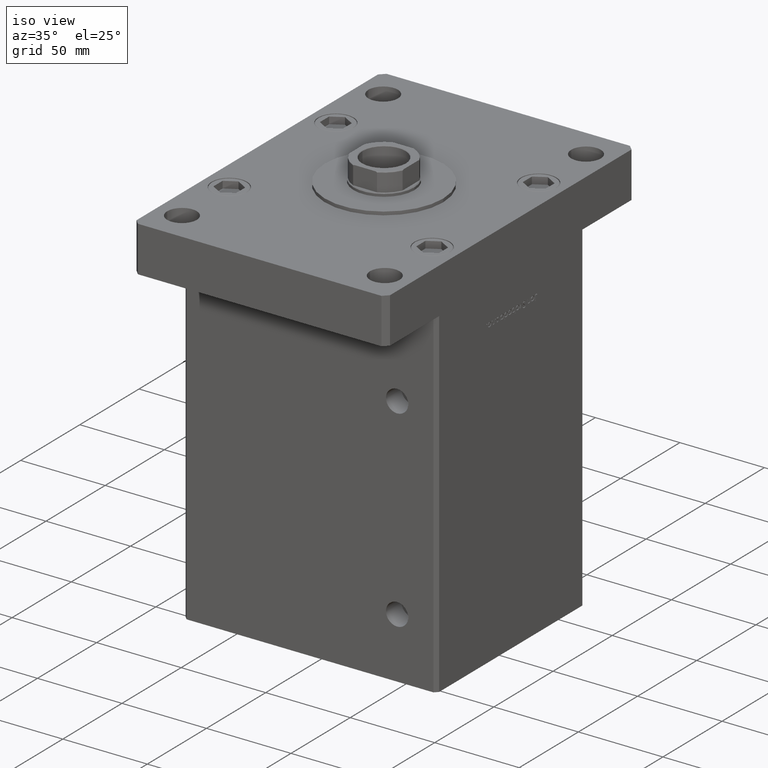
[diagram: clean part render]
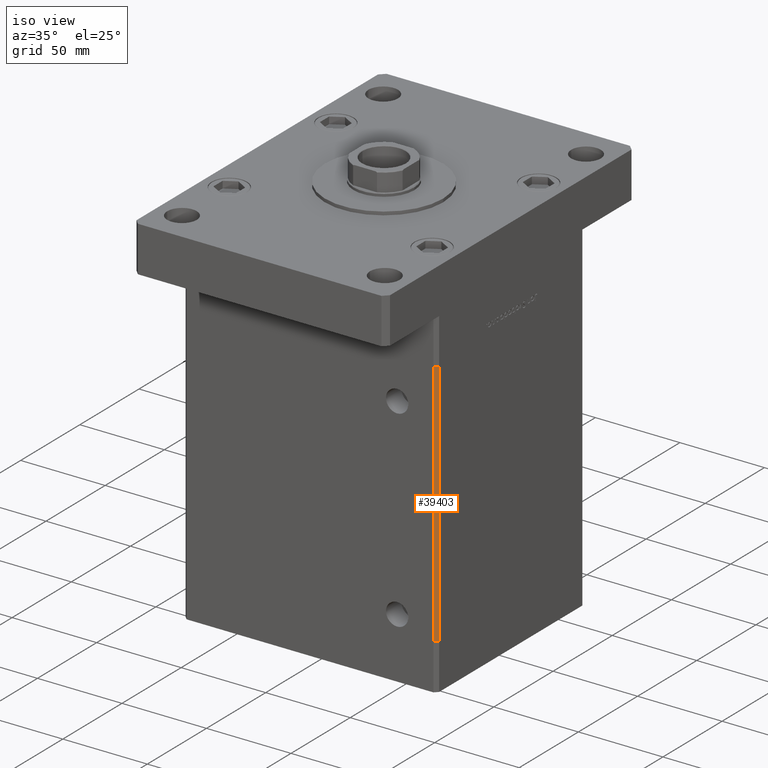
[diagram: same view with one face highlighted and labeled with its STEP entity id]
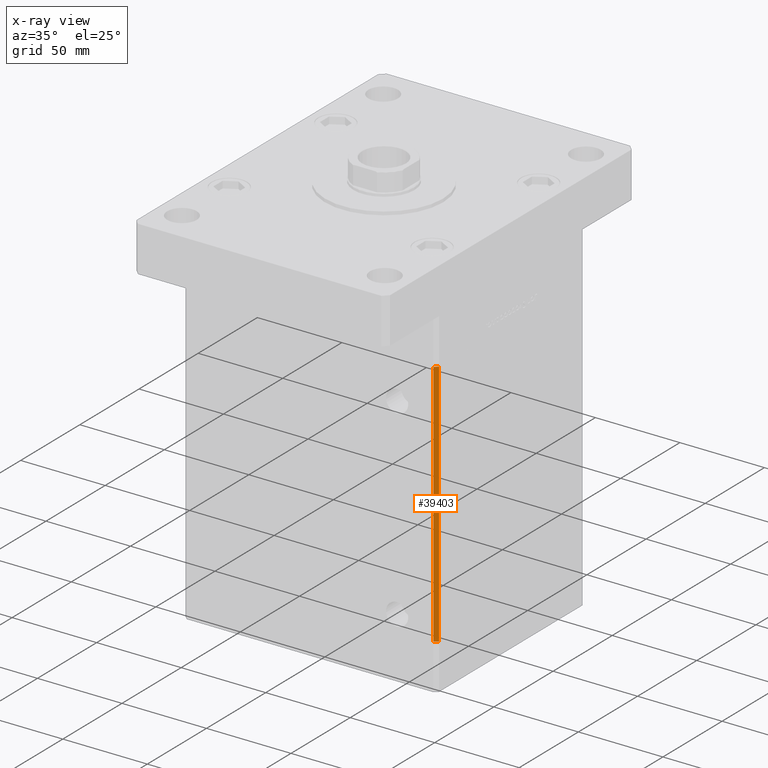
[diagram: x-ray of the same camera — body ghosted, the highlighted face saturated]
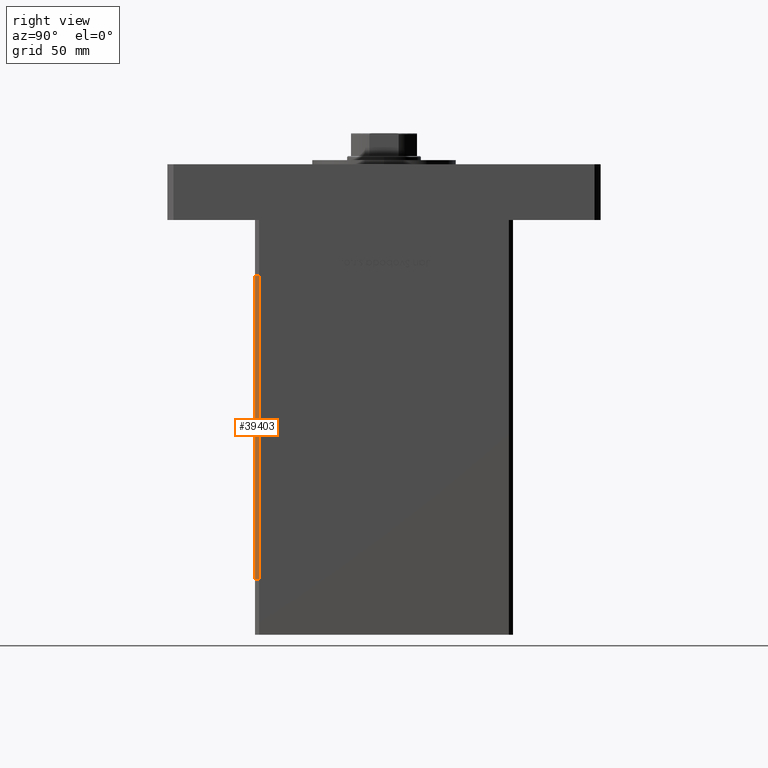
[diagram: same view with one face highlighted and labeled with its STEP entity id]
A machine part, iso view. The second image highlights one B-rep face of the part: STEP entity #39403.
The next image is the same camera in x-ray: the body ghosted, the highlighted face saturated — about 0% of this face is hidden behind the body in this view.
A second angle (right view) of the same face is appended — the face is thin or edge-on in the first view.
In plain terms, the highlighted planar face has unit normal (0.7071, -0.7071, 0).
Its self-contained STEP definition (entity closure, byte-faithful):
#22 = VECTOR ( 'NONE', #27850, 1000.000000000000114 ) ;
#1440 = LINE ( 'NONE', #13363, #9015 ) ;
#7653 = VECTOR ( 'NONE', #28098, 1000.000000000000114 ) ;
#9015 = VECTOR ( 'NONE', #14151, 1000.000000000000000 ) ;
#9212 = DIRECTION ( 'NONE',  ( -0.000000000000000000, -0.000000000000000000, -1.000000000000000000 ) ) ;
#11284 = ORIENTED_EDGE ( 'NONE', *, *, #14716, .T. ) ;
#13064 = DIRECTION ( 'NONE',  ( 0.7071067811865474617, 0.7071067811865474617, 0.000000000000000000 ) ) ;
#13363 = CARTESIAN_POINT ( 'NONE',  ( 74.99999999999998579, -60.50000000000000000, 147.0000000000000000 ) ) ;
#13545 = CARTESIAN_POINT ( 'NONE',  ( 72.99999999999998579, -62.50000000000000000, 147.0000000000000000 ) ) ;
#14019 = EDGE_CURVE ( 'NONE', #34012, #50882, #19460, .T. ) ;
#14151 = DIRECTION ( 'NONE',  ( -0.000000000000000000, -0.000000000000000000, -1.000000000000000000 ) ) ;
#14716 = EDGE_CURVE ( 'NONE', #21344, #50882, #29513, .T. ) ;
#14901 = CARTESIAN_POINT ( 'NONE',  ( 72.99999999999998579, -62.50000000000000000, 147.0000000000000000 ) ) ;
#15930 = CARTESIAN_POINT ( 'NONE',  ( 74.99999999999998579, -60.50000000000000000, 0.000000000000000000 ) ) ;
#17161 = EDGE_CURVE ( 'NONE', #49665, #21344, #19478, .T. ) ;
#18125 = CARTESIAN_POINT ( 'NONE',  ( 74.99999999999998579, -60.50000000000000000, 147.0000000000000000 ) ) ;
#19460 = LINE ( 'NONE', #15930, #7653 ) ;
#19478 = LINE ( 'NONE', #25056, #22 ) ;
#21344 = VERTEX_POINT ( 'NONE', #14901 ) ;
#21699 = ORIENTED_EDGE ( 'NONE', *, *, #14019, .F. ) ;
#22906 = AXIS2_PLACEMENT_3D ( 'NONE', #49885, #28754, #13064 ) ;
#25056 = CARTESIAN_POINT ( 'NONE',  ( 74.99999999999998579, -60.50000000000000000, 147.0000000000000000 ) ) ;
#25499 = FACE_OUTER_BOUND ( 'NONE', #33006, .T. ) ;
#25939 = ORIENTED_EDGE ( 'NONE', *, *, #17161, .T. ) ;
#26110 = CARTESIAN_POINT ( 'NONE',  ( 72.99999999999998579, -62.50000000000000000, 0.000000000000000000 ) ) ;
#26750 = VECTOR ( 'NONE', #9212, 1000.000000000000000 ) ;
#27788 = ORIENTED_EDGE ( 'NONE', *, *, #33019, .F. ) ;
#27850 = DIRECTION ( 'NONE',  ( -0.7071067811865474617, -0.7071067811865474617, 0.000000000000000000 ) ) ;
#28098 = DIRECTION ( 'NONE',  ( -0.7071067811865474617, -0.7071067811865474617, 0.000000000000000000 ) ) ;
#28754 = DIRECTION ( 'NONE',  ( 0.7071067811865475727, -0.7071067811865475727, 0.000000000000000000 ) ) ;
#29513 = LINE ( 'NONE', #13545, #26750 ) ;
#32801 = CARTESIAN_POINT ( 'NONE',  ( 74.99999999999998579, -60.50000000000000000, 0.000000000000000000 ) ) ;
#33006 = EDGE_LOOP ( 'NONE', ( #21699, #27788, #25939, #11284 ) ) ;
#33019 = EDGE_CURVE ( 'NONE', #49665, #34012, #1440, .T. ) ;
#34012 = VERTEX_POINT ( 'NONE', #32801 ) ;
#39403 = ADVANCED_FACE ( 'NONE', ( #25499 ), #45290, .T. ) ;
#45290 = PLANE ( 'NONE',  #22906 ) ;
#49665 = VERTEX_POINT ( 'NONE', #18125 ) ;
#49885 = CARTESIAN_POINT ( 'NONE',  ( 74.99999999999998579, -60.50000000000000000, 147.0000000000000000 ) ) ;
#50882 = VERTEX_POINT ( 'NONE', #26110 ) ;